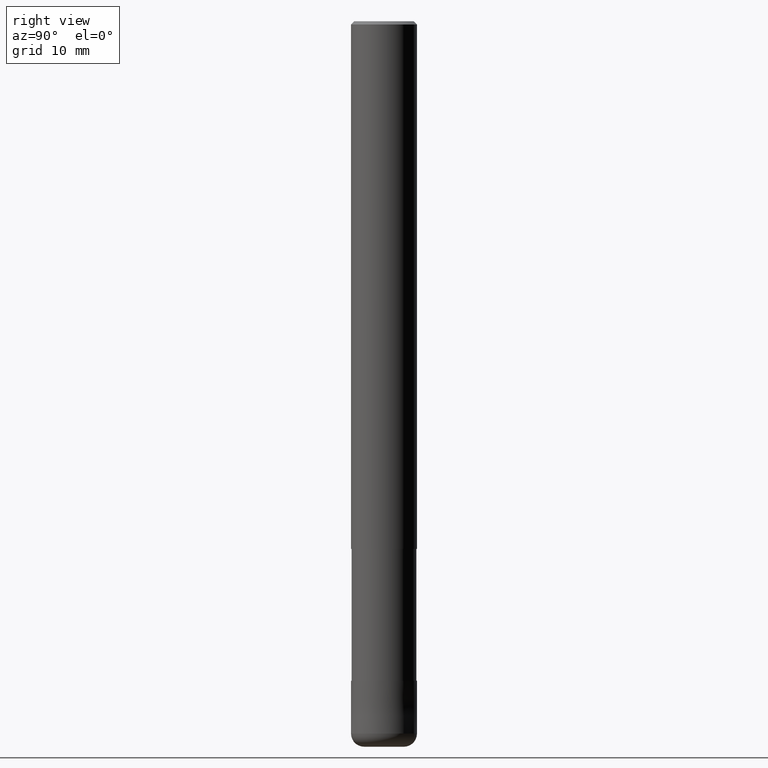
[diagram: clean part render]
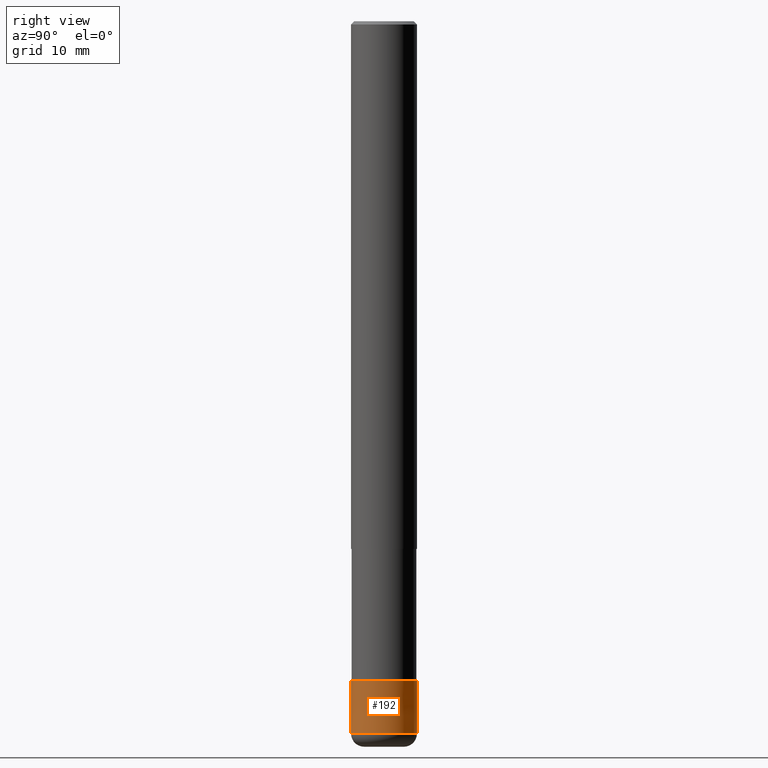
[diagram: same view with one face highlighted and labeled with its STEP entity id]
A machine part, right view. The second image highlights one B-rep face of the part: STEP entity #192.
In plain terms, the highlighted conical surface has half-angle 0.001 deg.
Its self-contained STEP definition (entity closure, byte-faithful):
#114=EDGE_CURVE('',#164,#138,#254,.T.);
#134=EDGE_CURVE('',#182,#138,#277,.T.);
#138=VERTEX_POINT('',#281);
#160=EDGE_CURVE('',#194,#164,#307,.T.);
#164=VERTEX_POINT('',#312);
#182=VERTEX_POINT('',#332);
#192=ADVANCED_FACE('',(#344),#345,.T.);
#194=VERTEX_POINT('',#347);
#204=EDGE_CURVE('',#182,#194,#357,.T.);
#254=LINE('',#403,#404);
#277=CIRCLE('',#432,4.9999);
#281=CARTESIAN_POINT('',(6.1229093084765E-016,-4.9999,-100.0));
#307=CIRCLE('',#466,5.0);
#312=CARTESIAN_POINT('',(6.12303176911189E-016,-5.0,-108.0));
#332=CARTESIAN_POINT('',(0.0,4.9999,-100.0));
#344=FACE_OUTER_BOUND('',#512,.T.);
#345=CONICAL_SURFACE('',#513,4.99995,1.24999999993198E-005);
#347=CARTESIAN_POINT('',(0.0,5.0,-108.0));
#357=LINE('',#530,#531);
#403=CARTESIAN_POINT('',(6.1229705387942E-016,-4.99995,-104.0));
#404=VECTOR('',#571,1.0);
#432=AXIS2_PLACEMENT_3D('',#598,#599,#600);
#466=AXIS2_PLACEMENT_3D('',#645,#646,#647);
#512=EDGE_LOOP('',(#697,#698,#699,#700));
#513=AXIS2_PLACEMENT_3D('',#701,#702,#703);
#530=CARTESIAN_POINT('',(-6.1229705387942E-016,4.99995,-104.0));
#531=VECTOR('',#711,1.0);
#571=DIRECTION('',(-1.53075794215481E-021,1.24999999989943E-005,0.999999999921875));
#598=CARTESIAN_POINT('',(0.0,0.0,-100.0));
#599=DIRECTION('',(0.0,0.0,-1.0));
#600=DIRECTION('',(0.0,1.0,0.0));
#645=CARTESIAN_POINT('',(0.0,0.0,-108.0));
#646=DIRECTION('',(0.0,0.0,-1.0));
#647=DIRECTION('',(0.0,1.0,0.0));
#697=ORIENTED_EDGE('',*,*,#204,.F.);
#698=ORIENTED_EDGE('',*,*,#134,.T.);
#699=ORIENTED_EDGE('',*,*,#114,.F.);
#700=ORIENTED_EDGE('',*,*,#160,.F.);
#701=CARTESIAN_POINT('',(0.0,0.0,-104.0));
#702=DIRECTION('',(0.0,-0.0,-1.0));
#703=DIRECTION('',(0.0,1.0,0.0));
#711=DIRECTION('',(-1.53075794215481E-021,1.24999999989943E-005,-0.999999999921875));